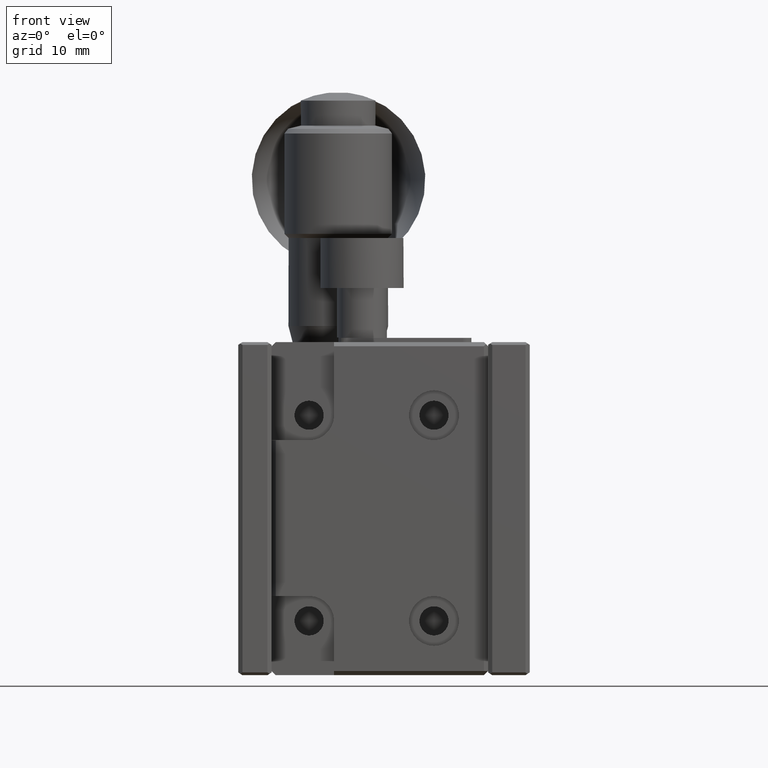
[diagram: clean part render]
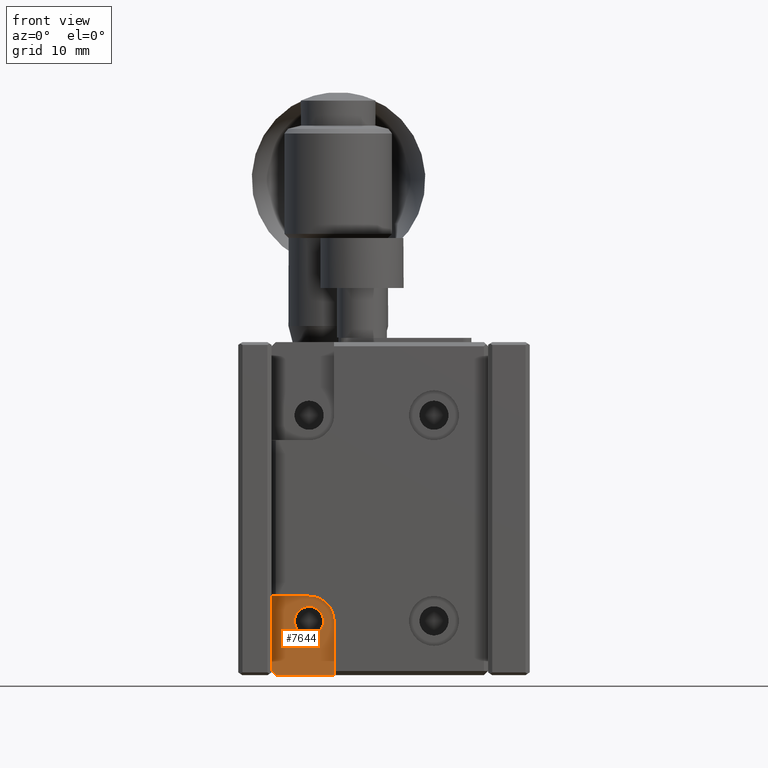
[diagram: same view with one face highlighted and labeled with its STEP entity id]
A machine part, front view. The second image highlights one B-rep face of the part: STEP entity #7644.
In plain terms, the highlighted planar face has unit normal (-0, 1, 0).
Its self-contained STEP definition (entity closure, byte-faithful):
#82 = EDGE_CURVE ( 'NONE', #940, #8067, #782, .T. ) ;
#782 = LINE ( 'NONE', #7328, #5040 ) ;
#940 = VERTEX_POINT ( 'NONE', #2675 ) ;
#1008 = CARTESIAN_POINT ( 'NONE',  ( -3.499999999999840128, -15.50000000000000000, -35.25000000000000000 ) ) ;
#1027 = FACE_BOUND ( 'NONE', #3512, .T. ) ;
#1352 = VECTOR ( 'NONE', #7754, 1000.000000000000000 ) ;
#1429 = CARTESIAN_POINT ( 'NONE',  ( -7.499999999999841016, -15.50000000000000000, -40.00000000000000000 ) ) ;
#1647 = AXIS2_PLACEMENT_3D ( 'NONE', #5044, #6349, #7743 ) ;
#1683 = FACE_OUTER_BOUND ( 'NONE', #5209, .T. ) ;
#1741 = CIRCLE ( 'NONE', #5646, 2.999999999999999112 ) ;
#1803 = VERTEX_POINT ( 'NONE', #1910 ) ;
#1910 = CARTESIAN_POINT ( 'NONE',  ( -7.999999999999840128, -15.50000000000000000, -30.50000000000000000 ) ) ;
#2189 = CARTESIAN_POINT ( 'NONE',  ( -3.499999999999840128, -15.50000000000000000, -30.50000000000000000 ) ) ;
#2268 = VECTOR ( 'NONE', #8429, 1000.000000000000000 ) ;
#2317 = ORIENTED_EDGE ( 'NONE', *, *, #4765, .T. ) ;
#2504 = ORIENTED_EDGE ( 'NONE', *, *, #7215, .T. ) ;
#2616 = DIRECTION ( 'NONE',  ( -0.000000000000000000, -1.000000000000000000, -0.000000000000000000 ) ) ;
#2675 = CARTESIAN_POINT ( 'NONE',  ( -0.4999999999998370748, -15.50000000000000000, -40.00000000000000000 ) ) ;
#2744 = CARTESIAN_POINT ( 'NONE',  ( -3.499999999999840128, -15.50000000000000000, -33.50000000000000000 ) ) ;
#2745 = EDGE_CURVE ( 'NONE', #940, #7005, #5766, .T. ) ;
#2750 = VERTEX_POINT ( 'NONE', #1008 ) ;
#3049 = ORIENTED_EDGE ( 'NONE', *, *, #82, .T. ) ;
#3356 = DIRECTION ( 'NONE',  ( 0.000000000000000000, 0.000000000000000000, 1.000000000000000000 ) ) ;
#3370 = EDGE_CURVE ( 'NONE', #2750, #2750, #4154, .T. ) ;
#3512 = EDGE_LOOP ( 'NONE', ( #3582 ) ) ;
#3582 = ORIENTED_EDGE ( 'NONE', *, *, #3370, .F. ) ;
#3623 = ORIENTED_EDGE ( 'NONE', *, *, #6052, .F. ) ;
#4154 = CIRCLE ( 'NONE', #4839, 1.750000000000001554 ) ;
#4197 = LINE ( 'NONE', #6211, #8501 ) ;
#4284 = CARTESIAN_POINT ( 'NONE',  ( -3.499999999999840128, -15.50000000000000000, -33.50000000000000000 ) ) ;
#4413 = DIRECTION ( 'NONE',  ( 0.000000000000000000, 0.000000000000000000, -1.000000000000000000 ) ) ;
#4648 = CARTESIAN_POINT ( 'NONE',  ( -7.999999999999840128, -15.50000000000000000, -33.50000000000000000 ) ) ;
#4765 = EDGE_CURVE ( 'NONE', #8067, #6575, #1741, .T. ) ;
#4839 = AXIS2_PLACEMENT_3D ( 'NONE', #4284, #6387, #4413 ) ;
#5040 = VECTOR ( 'NONE', #6720, 1000.000000000000000 ) ;
#5044 = CARTESIAN_POINT ( 'NONE',  ( -3.499999999999840128, -15.50000000000000000, -33.50000000000000000 ) ) ;
#5092 = CARTESIAN_POINT ( 'NONE',  ( -3.499999999999829914, -15.50000000000000000, -30.50000000000000000 ) ) ;
#5209 = EDGE_LOOP ( 'NONE', ( #2504, #3623, #6197, #6791, #3049, #2317 ) ) ;
#5646 = AXIS2_PLACEMENT_3D ( 'NONE', #2744, #2616, #3356 ) ;
#5656 = CARTESIAN_POINT ( 'NONE',  ( -7.999999999999840128, -15.50000000000000000, -39.50000000000000000 ) ) ;
#5766 = LINE ( 'NONE', #6620, #2268 ) ;
#5792 = LINE ( 'NONE', #4648, #8648 ) ;
#6052 = EDGE_CURVE ( 'NONE', #7618, #1803, #5792, .T. ) ;
#6197 = ORIENTED_EDGE ( 'NONE', *, *, #8524, .F. ) ;
#6211 = CARTESIAN_POINT ( 'NONE',  ( -7.499999999999840128, -15.50000000000000000, -40.00000000000000000 ) ) ;
#6349 = DIRECTION ( 'NONE',  ( -0.000000000000000000, 1.000000000000000000, 0.000000000000000000 ) ) ;
#6387 = DIRECTION ( 'NONE',  ( 0.000000000000000000, -1.000000000000000000, 0.000000000000000000 ) ) ;
#6575 = VERTEX_POINT ( 'NONE', #2189 ) ;
#6620 = CARTESIAN_POINT ( 'NONE',  ( 5.000000000000079936, -15.49999999999999822, -40.00000000000000000 ) ) ;
#6720 = DIRECTION ( 'NONE',  ( -0.000000000000000000, -0.000000000000000000, 1.000000000000000000 ) ) ;
#6791 = ORIENTED_EDGE ( 'NONE', *, *, #2745, .F. ) ;
#7005 = VERTEX_POINT ( 'NONE', #1429 ) ;
#7008 = PLANE ( 'NONE',  #1647 ) ;
#7215 = EDGE_CURVE ( 'NONE', #6575, #1803, #8461, .T. ) ;
#7328 = CARTESIAN_POINT ( 'NONE',  ( -0.4999999999998370748, -15.50000000000000000, -47.29999999999999716 ) ) ;
#7618 = VERTEX_POINT ( 'NONE', #5656 ) ;
#7644 = ADVANCED_FACE ( 'NONE', ( #1683, #1027 ), #7008, .F. ) ;
#7648 = DIRECTION ( 'NONE',  ( -0.7071067811865474617, 0.000000000000000000, 0.7071067811865474617 ) ) ;
#7743 = DIRECTION ( 'NONE',  ( 0.000000000000000000, -0.000000000000000000, 1.000000000000000000 ) ) ;
#7754 = DIRECTION ( 'NONE',  ( -1.000000000000000000, -0.000000000000000000, 0.000000000000000000 ) ) ;
#7798 = DIRECTION ( 'NONE',  ( 0.000000000000000000, -0.000000000000000000, 1.000000000000000000 ) ) ;
#7886 = CARTESIAN_POINT ( 'NONE',  ( -0.4999999999998369637, -15.50000000000000000, -33.50000000000000000 ) ) ;
#8067 = VERTEX_POINT ( 'NONE', #7886 ) ;
#8429 = DIRECTION ( 'NONE',  ( -1.000000000000000000, 0.000000000000000000, -0.000000000000000000 ) ) ;
#8461 = LINE ( 'NONE', #5092, #1352 ) ;
#8501 = VECTOR ( 'NONE', #7648, 1000.000000000000114 ) ;
#8524 = EDGE_CURVE ( 'NONE', #7005, #7618, #4197, .T. ) ;
#8648 = VECTOR ( 'NONE', #7798, 1000.000000000000000 ) ;